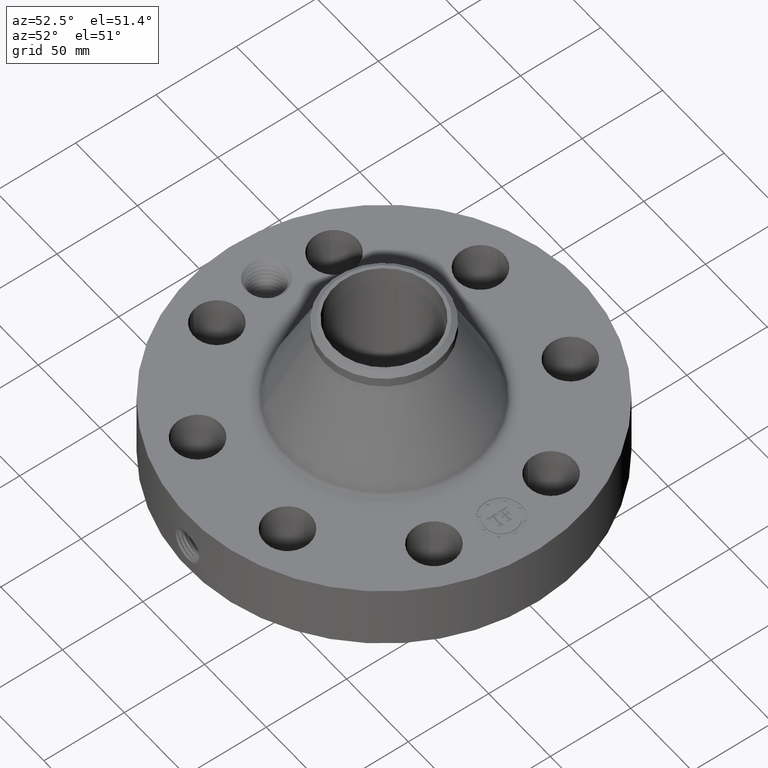
[diagram: clean part render]
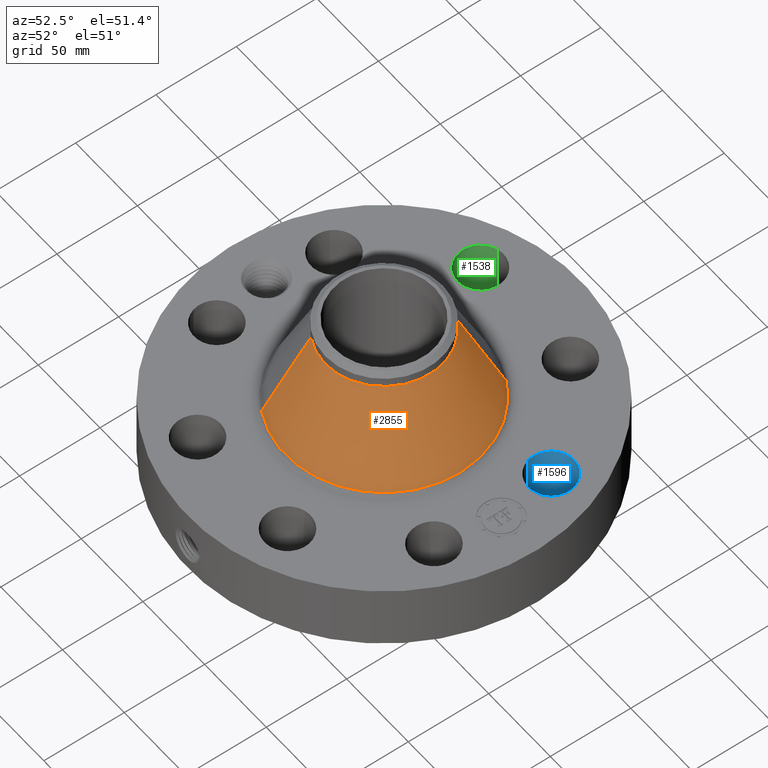
[diagram: same view with three faces highlighted in distinct colors, each labeled with its STEP entity id]
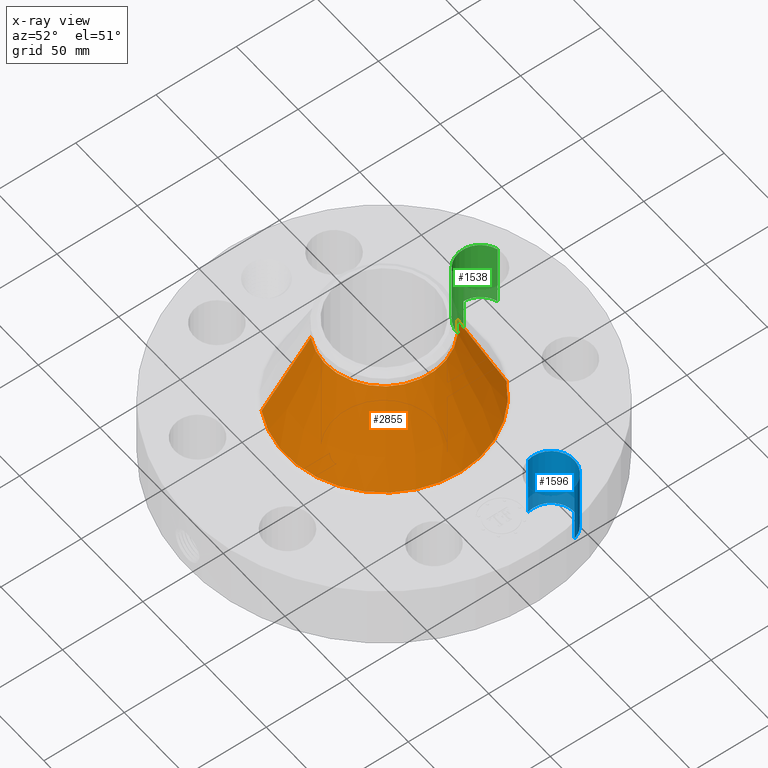
[diagram: x-ray of the same camera — body ghosted, the three highlighted faces saturated]
A machine part, auxiliary view with three faces highlighted in distinct colors.
The next image is the same camera in x-ray (body ghosted, the three faces saturated) — at least one of them is partly hidden behind the body in this view.
Their STEP definitions:

[orange] entity #2855 — the highlighted conical surface has half-angle 24.777 deg.
#2111=AXIS2_PLACEMENT_3D('Circle Axis2P3D',#2109,#2110,$) ;
#2828=AXIS2_PLACEMENT_3D('Cone Axis2P3D',#2825,#2826,#2827) ;
#2839=AXIS2_PLACEMENT_3D('Circle Axis2P3D',#2837,#2838,$) ;
#2106=CARTESIAN_POINT('Vertex',(1.15437224008,2.11306421175,1.93971008371)) ;
#2109=CARTESIAN_POINT('Axis2P3D Location',(0.,0.,1.93971008371)) ;
#2113=CARTESIAN_POINT('Vertex',(-1.15437224008,-2.11306421175,1.93971008371)) ;
#2825=CARTESIAN_POINT('Axis2P3D Location',(0.,0.,4.03651327942)) ;
#2830=CARTESIAN_POINT('Line Origine',(0.922372507837,1.68839155044,2.98811168156)) ;
#2834=CARTESIAN_POINT('Vertex',(0.690372775593,1.26371888913,4.03651327942)) ;
#2837=CARTESIAN_POINT('Axis2P3D Location',(0.,0.,4.03651327942)) ;
#2841=CARTESIAN_POINT('Vertex',(-0.690372775593,-1.26371888913,4.03651327942)) ;
#2844=CARTESIAN_POINT('Line Origine',(-0.922372507837,-1.68839155044,2.98811168156)) ;
#2110=DIRECTION('Axis2P3D Direction',(0.,0.,-0.0393700787402)) ;
#2826=DIRECTION('Axis2P3D Direction',(0.,0.,-0.0393700787402)) ;
#2827=DIRECTION('Axis2P3D XDirection',(-0.0188750212049,-0.0345504945626,0.)) ;
#2831=DIRECTION('Vector Direction',(0.00791019363739,0.0144795123296,-0.0357459880171)) ;
#2838=DIRECTION('Axis2P3D Direction',(0.,0.,-0.0393700787402)) ;
#2845=DIRECTION('Vector Direction',(-0.00791019363739,-0.0144795123296,-0.0357459880171)) ;
#2832=VECTOR('Line Direction',#2831,0.0393700787402) ;
#2846=VECTOR('Line Direction',#2845,0.0393700787402) ;
#2850=ORIENTED_EDGE('',*,*,#2115,.F.) ;
#2851=ORIENTED_EDGE('',*,*,#2836,.T.) ;
#2852=ORIENTED_EDGE('',*,*,#2843,.T.) ;
#2853=ORIENTED_EDGE('',*,*,#2848,.F.) ;
#2855=ADVANCED_FACE('PartBody',(#2854),#2829,.T.) ;
#2112=CIRCLE('generated circle',#2111,2.40782383734) ;
#2840=CIRCLE('generated circle',#2839,1.44000000001) ;
#2829=CONICAL_SURFACE('Cone',#2828,1.44000000001,0.432434713443) ;
#2115=EDGE_CURVE('',#2107,#2114,#2112,.T.) ;
#2836=EDGE_CURVE('',#2107,#2835,#2833,.F.) ;
#2843=EDGE_CURVE('',#2835,#2842,#2840,.T.) ;
#2848=EDGE_CURVE('',#2114,#2842,#2847,.F.) ;
#2849=EDGE_LOOP('',(#2850,#2851,#2852,#2853)) ;
#2854=FACE_OUTER_BOUND('',#2849,.T.) ;
#2833=LINE('Line',#2830,#2832) ;
#2847=LINE('Line',#2844,#2846) ;
#2107=VERTEX_POINT('',#2106) ;
#2114=VERTEX_POINT('',#2113) ;
#2835=VERTEX_POINT('',#2834) ;
#2842=VERTEX_POINT('',#2841) ;

[blue] entity #1596 — the highlighted cylindrical surface (edge-blend (fillet) strip) has radius 14.224 mm, axis along (0, 0, -1).
#385=AXIS2_PLACEMENT_3D('Circle Axis2P3D',#383,#384,$) ;
#728=AXIS2_PLACEMENT_3D('Circle Axis2P3D',#726,#727,$) ;
#1578=AXIS2_PLACEMENT_3D('Cylinder Axis2P3D',#1575,#1576,#1577) ;
#383=CARTESIAN_POINT('Axis2P3D Location',(3.46454824693,1.43506287137,0.250000000001)) ;
#387=CARTESIAN_POINT('Vertex',(2.92720045414,1.27740073393,0.250000000001)) ;
#389=CARTESIAN_POINT('Vertex',(4.00189603972,1.59272500882,0.250000000001)) ;
#721=CARTESIAN_POINT('Vertex',(4.00189603972,1.59272500882,1.87000000001)) ;
#723=CARTESIAN_POINT('Vertex',(2.92720045414,1.27740073393,1.87000000001)) ;
#726=CARTESIAN_POINT('Axis2P3D Location',(3.46454824693,1.43506287137,1.87000000001)) ;
#1575=CARTESIAN_POINT('Axis2P3D Location',(3.46454824693,1.43506287137,1.86606299213)) ;
#1580=CARTESIAN_POINT('Line Origine',(2.92720045414,1.27740073393,1.06)) ;
#1585=CARTESIAN_POINT('Line Origine',(4.00189603972,1.59272500882,1.06)) ;
#384=DIRECTION('Axis2P3D Direction',(0.,0.,-0.0393700787402)) ;
#727=DIRECTION('Axis2P3D Direction',(0.,0.,-0.0393700787402)) ;
#1576=DIRECTION('Axis2P3D Direction',(0.,0.,-0.0393700787402)) ;
#1577=DIRECTION('Axis2P3D XDirection',(0.0377775444876,0.0110842335096,0.)) ;
#1581=DIRECTION('Vector Direction',(0.,0.,-0.0393700787402)) ;
#1586=DIRECTION('Vector Direction',(0.,0.,-0.0393700787402)) ;
#1582=VECTOR('Line Direction',#1581,0.0393700787402) ;
#1587=VECTOR('Line Direction',#1586,0.0393700787402) ;
#1591=ORIENTED_EDGE('',*,*,#1584,.F.) ;
#1592=ORIENTED_EDGE('',*,*,#391,.T.) ;
#1593=ORIENTED_EDGE('',*,*,#1589,.T.) ;
#1594=ORIENTED_EDGE('',*,*,#730,.F.) ;
#1596=ADVANCED_FACE('PartBody',(#1595),#1579,.F.) ;
#386=CIRCLE('generated circle',#385,0.560000000002) ;
#729=CIRCLE('generated circle',#728,0.560000000002) ;
#1579=CYLINDRICAL_SURFACE('generated cylinder',#1578,0.560000000002) ;
#391=EDGE_CURVE('',#388,#390,#386,.T.) ;
#730=EDGE_CURVE('',#724,#722,#729,.T.) ;
#1584=EDGE_CURVE('',#388,#724,#1583,.F.) ;
#1589=EDGE_CURVE('',#390,#722,#1588,.F.) ;
#1590=EDGE_LOOP('',(#1591,#1592,#1593,#1594)) ;
#1595=FACE_OUTER_BOUND('',#1590,.T.) ;
#1583=LINE('Line',#1580,#1582) ;
#1588=LINE('Line',#1585,#1587) ;
#388=VERTEX_POINT('',#387) ;
#390=VERTEX_POINT('',#389) ;
#722=VERTEX_POINT('',#721) ;
#724=VERTEX_POINT('',#723) ;

[green] entity #1538 — the highlighted cylindrical surface (edge-blend (fillet) strip) has radius 14.224 mm, axis along (0, 0, -1).
#349=AXIS2_PLACEMENT_3D('Circle Axis2P3D',#347,#348,$) ;
#692=AXIS2_PLACEMENT_3D('Circle Axis2P3D',#690,#691,$) ;
#1520=AXIS2_PLACEMENT_3D('Cylinder Axis2P3D',#1517,#1518,#1519) ;
#347=CARTESIAN_POINT('Axis2P3D Location',(-1.43506287137,3.46454824693,0.250000000001)) ;
#351=CARTESIAN_POINT('Vertex',(-1.27740073393,2.92720045414,0.250000000001)) ;
#353=CARTESIAN_POINT('Vertex',(-1.59272500882,4.00189603972,0.250000000001)) ;
#685=CARTESIAN_POINT('Vertex',(-1.59272500882,4.00189603972,1.87000000001)) ;
#687=CARTESIAN_POINT('Vertex',(-1.27740073393,2.92720045414,1.87000000001)) ;
#690=CARTESIAN_POINT('Axis2P3D Location',(-1.43506287137,3.46454824693,1.87000000001)) ;
#1517=CARTESIAN_POINT('Axis2P3D Location',(-1.43506287137,3.46454824693,1.86606299213)) ;
#1522=CARTESIAN_POINT('Line Origine',(-1.27740073393,2.92720045414,1.06)) ;
#1527=CARTESIAN_POINT('Line Origine',(-1.59272500882,4.00189603972,1.06)) ;
#348=DIRECTION('Axis2P3D Direction',(0.,0.,-0.0393700787402)) ;
#691=DIRECTION('Axis2P3D Direction',(0.,0.,-0.0393700787402)) ;
#1518=DIRECTION('Axis2P3D Direction',(0.,0.,-0.0393700787402)) ;
#1519=DIRECTION('Axis2P3D XDirection',(-0.0110842335096,0.0377775444876,0.)) ;
#1523=DIRECTION('Vector Direction',(0.,0.,-0.0393700787402)) ;
#1528=DIRECTION('Vector Direction',(0.,0.,-0.0393700787402)) ;
#1524=VECTOR('Line Direction',#1523,0.0393700787402) ;
#1529=VECTOR('Line Direction',#1528,0.0393700787402) ;
#1533=ORIENTED_EDGE('',*,*,#1526,.F.) ;
#1534=ORIENTED_EDGE('',*,*,#355,.T.) ;
#1535=ORIENTED_EDGE('',*,*,#1531,.T.) ;
#1536=ORIENTED_EDGE('',*,*,#694,.F.) ;
#1538=ADVANCED_FACE('PartBody',(#1537),#1521,.F.) ;
#350=CIRCLE('generated circle',#349,0.560000000002) ;
#693=CIRCLE('generated circle',#692,0.560000000002) ;
#1521=CYLINDRICAL_SURFACE('generated cylinder',#1520,0.560000000002) ;
#355=EDGE_CURVE('',#352,#354,#350,.T.) ;
#694=EDGE_CURVE('',#688,#686,#693,.T.) ;
#1526=EDGE_CURVE('',#352,#688,#1525,.F.) ;
#1531=EDGE_CURVE('',#354,#686,#1530,.F.) ;
#1532=EDGE_LOOP('',(#1533,#1534,#1535,#1536)) ;
#1537=FACE_OUTER_BOUND('',#1532,.T.) ;
#1525=LINE('Line',#1522,#1524) ;
#1530=LINE('Line',#1527,#1529) ;
#352=VERTEX_POINT('',#351) ;
#354=VERTEX_POINT('',#353) ;
#686=VERTEX_POINT('',#685) ;
#688=VERTEX_POINT('',#687) ;